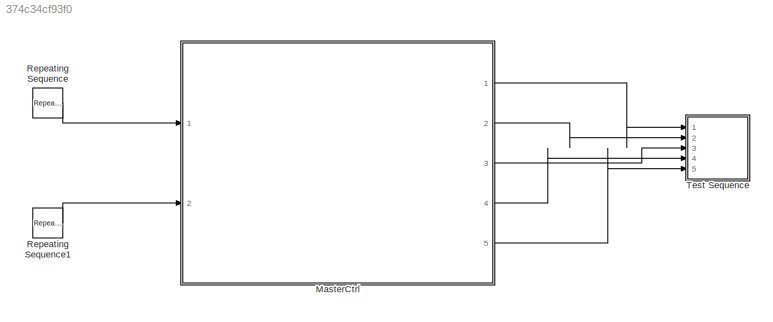
MODEL slx_374c34cf93f0
KIND model
CONFIG AbsTol = auto
CONFIG EnableMultiTasking = off
CONFIG FixedStep = auto
CONFIG MaxStep = auto
CONFIG MinStep = auto
CONFIG RelTol = 1e-3
CONFIG SampleTimeConstraint = Unconstrained
CONFIG Solver = VariableStepAuto
CONFIG SolverName = VariableStepAuto
CONFIG StartTime = 0.0
CONFIG StopTime = 10.0
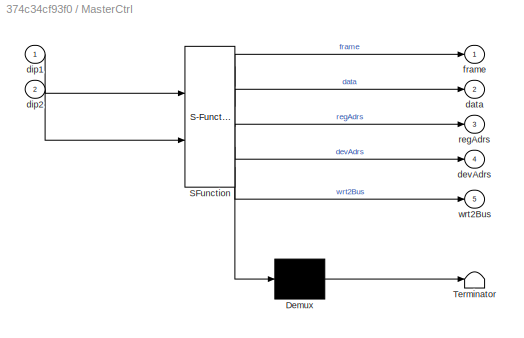
BLOCK [SubSystem] MasterCtrl
  ErrorFcn = Stateflow.Translate.translate
  PermitHierarchicalResolution = ExplicitOnly
  Ports = [2, 5]
  RequestExecContextInheritance = off
  SFBlockType = Chart
  TreatAsAtomicUnit = on
BLOCK [Demux] MasterCtrl/ Demux 
  Outputs = 1
  Ports = [1, 1]
BLOCK [S-Function] MasterCtrl/ SFunction 
  EnableBusSupport = on
  FunctionName = sf_sfun
  PortCounts = [2 6]
  Ports = [2, 6]
  SFcnIsStateOwnerBlock = off
  SFunctionDeploymentMode = off
  Tag = Stateflow S-Function 3
BLOCK [Terminator] MasterCtrl/ Terminator 
BLOCK [Outport] MasterCtrl/data
  Port = 2
  VectorParamsAs1DForOutWhenUnconnected = off
BLOCK [Outport] MasterCtrl/devAdrs
  Port = 4
  VectorParamsAs1DForOutWhenUnconnected = off
BLOCK [Inport] MasterCtrl/dip1
BLOCK [Inport] MasterCtrl/dip2
  Port = 2
BLOCK [Outport] MasterCtrl/frame
  VectorParamsAs1DForOutWhenUnconnected = off
BLOCK [Outport] MasterCtrl/regAdrs
  Port = 3
  VectorParamsAs1DForOutWhenUnconnected = off
BLOCK [Outport] MasterCtrl/wrt2Bus
  Port = 5
  VectorParamsAs1DForOutWhenUnconnected = off
BLOCK [Reference] Repeating Sequence  REF=simulink/Sources/Repeating
Sequence
  Ports = [0, 1]
  SourceBlock = simulink/Sources/Repeating\nSequence
  SourceProductBaseCode = SL
  SourceType = Repeating table
BLOCK [Reference] Repeating Sequence1  REF=simulink/Sources/Repeating
Sequence
  Ports = [0, 1]
  SourceBlock = simulink/Sources/Repeating\nSequence
  SourceProductBaseCode = SL
  SourceType = Repeating table
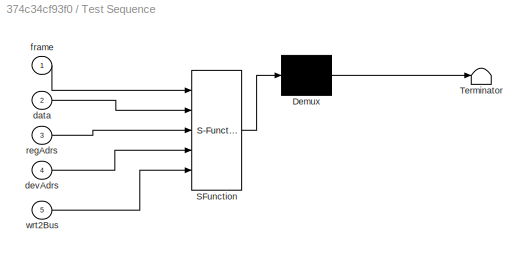
BLOCK [SubSystem] Test Sequence
  ErrorFcn = Stateflow.Translate.translate
  PermitHierarchicalResolution = ExplicitOnly
  Ports = [5]
  RequestExecContextInheritance = off
  SFBlockType = Test Sequence
  TreatAsAtomicUnit = on
BLOCK [Demux] Test Sequence/ Demux 
  Outputs = 1
  Ports = [1, 1]
BLOCK [S-Function] Test Sequence/ SFunction 
  EnableBusSupport = on
  FunctionName = sf_sfun
  PortCounts = [5 1]
  Ports = [5, 1]
  SFcnIsStateOwnerBlock = off
  SFunctionDeploymentMode = off
  Tag = Stateflow S-Function 4
BLOCK [Terminator] Test Sequence/ Terminator 
BLOCK [Inport] Test Sequence/data
  Port = 2
BLOCK [Inport] Test Sequence/devAdrs
  Port = 4
BLOCK [Inport] Test Sequence/frame
BLOCK [Inport] Test Sequence/regAdrs
  Port = 3
BLOCK [Inport] Test Sequence/wrt2Bus
  Port = 5
LINE MasterCtrl:1 -> Test Sequence:1
LINE MasterCtrl:2 -> Test Sequence:2
LINE MasterCtrl:3 -> Test Sequence:3
LINE MasterCtrl:4 -> Test Sequence:4
LINE MasterCtrl:5 -> Test Sequence:5
LINE Repeating Sequence1:1 -> MasterCtrl:2
LINE Repeating Sequence:1 -> MasterCtrl:1
CHART MasterCtrl states=9 transitions=10
  STATE_LABEL 'Read'
  STATE_LABEL 'Dip_1\n\ndevAdrs = 2;\nregAdrs = -128;\ndata = 0;\nwrt2Bus = 1;'
  STATE_LABEL 'Read_idle'
  STATE_LABEL 'Dip_2\n\ndevAdrs = 3;\nregAdrs = -128;\ndata = 0;\nwrt2Bus = 1;'
  STATE_LABEL '[dip1 == 1]'
  STATE_LABEL '{ dip1; dip2 }'
  STATE_LABEL '[dip2 == 1]'
  STATE_LABEL 'Dip_1\n\ndevAdrs = 2;\nregAdrs = -128;\ndata = 0;\nwrt2Bus = 1;'
  STATE_LABEL 'Read_idle'
  STATE_LABEL 'Dip_2\n\ndevAdrs = 3;\nregAdrs = -128;\ndata = 0;\nwrt2Bus = 1;'
  STATE_LABEL 'Write'
  STATE_LABEL 'Write_start'
  STATE_LABEL 'Device_Address\n\nframe = devAdrs'
  STATE_LABEL 'Register_Address\n\nframe = regAdrs'
  STATE_LABEL 'Data\n\nframe = data;\nwrt2Bus = 0;'
  STATE_LABEL 'Write_start'
  STATE_LABEL 'Device_Address\n\nframe = devAdrs'
  STATE_LABEL 'Register_Address\n\nframe = regAdrs'
  STATE_LABEL 'Data\n\nframe = data;\nwrt2Bus = 0;'
CHART Test Sequence states=10 transitions=10
  STATE_LABEL 'step_1\nassert(devAdrs==0 && regAdrs==0 && data==0)'
  STATE_LABEL 'step_2\nassert(devAdrs==2 && regAdrs==-128 && wrt2Bus==1)'
  STATE_LABEL 'step_3\nassert(frame==2 && devAdrs==2 && regAdrs==-128 && wrt2Bus==1)'
  STATE_LABEL 'step_4\nassert(frame==-128 && devAdrs==2 && regAdrs==-128 && wrt2Bus==1)'
  STATE_LABEL 'step_5\nassert(frame==0 && devAdrs==2 && regAdrs==-128 && wrt2Bus==0)'
  STATE_LABEL 'step_6\nassert(devAdrs==3 && regAdrs==-128 && wrt2Bus==1)'
  STATE_LABEL 'step_7\nassert(frame==3 && devAdrs==3 && regAdrs==-128 && wrt2Bus==1)'
  STATE_LABEL 'step_8\nassert(frame==-128 && devAdrs==3 && regAdrs==-128 && wrt2Bus==1)'
  STATE_LABEL 'step_9\nassert(frame==0 && devAdrs==3 && regAdrs==-128 && wrt2Bus==0)'
  STATE_LABEL 'step_10'
CHART  states=0 transitions=0
CHART  states=0 transitions=0
